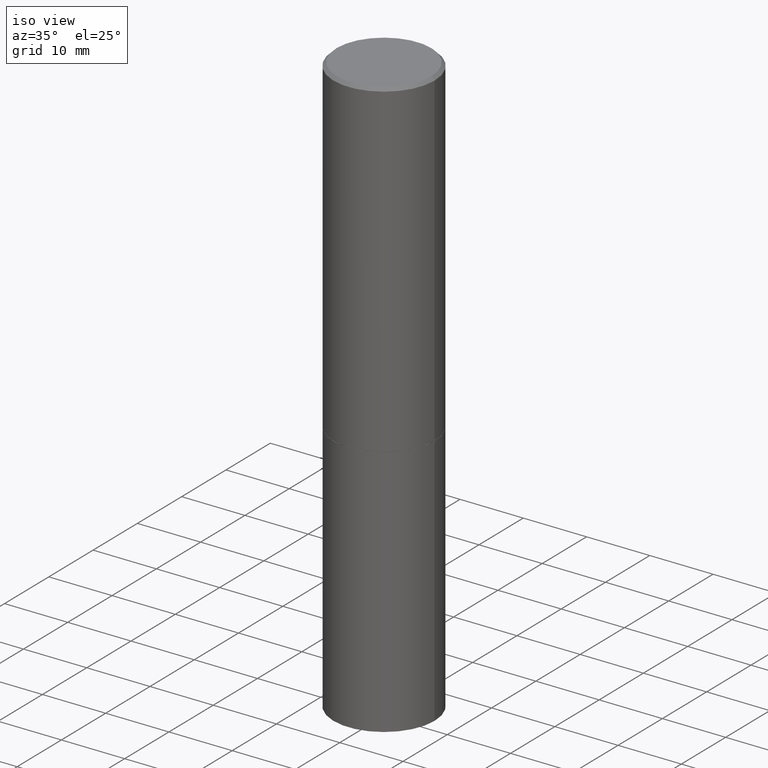
[diagram: clean part render]
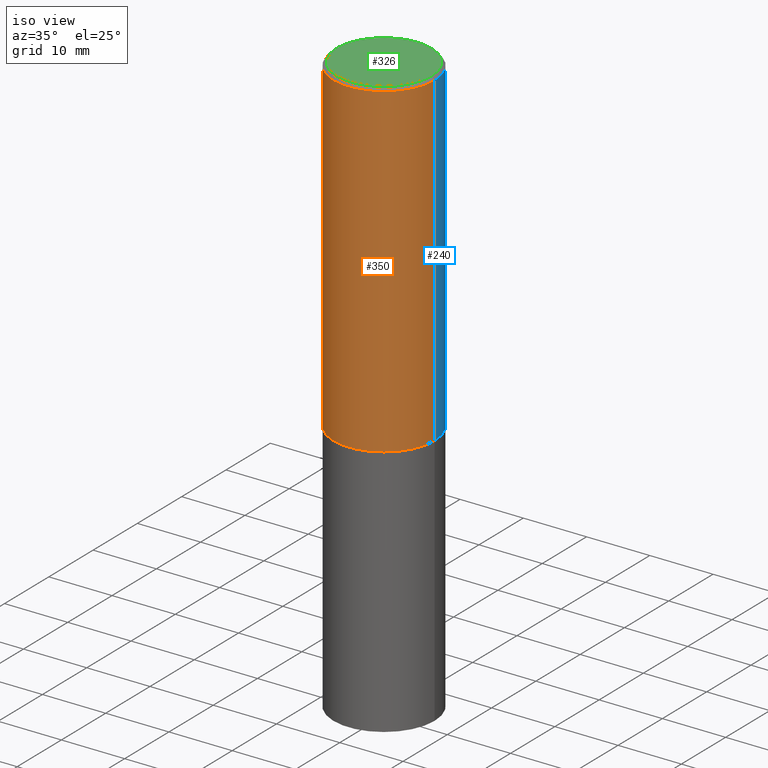
[diagram: same view with three faces highlighted in distinct colors, each labeled with its STEP entity id]
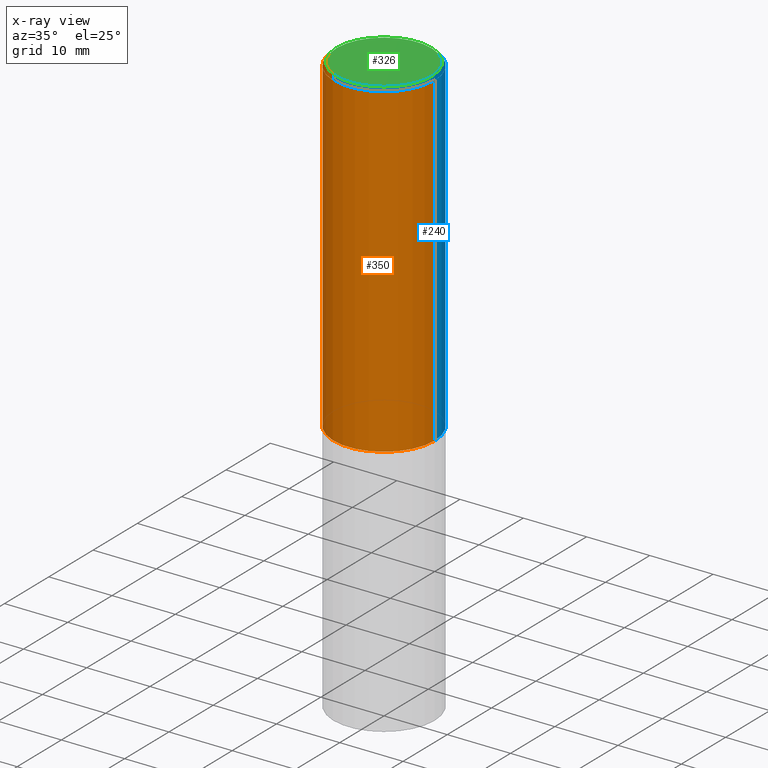
[diagram: x-ray of the same camera — body ghosted, the three highlighted faces saturated]
A machine part, iso view with three faces highlighted in distinct colors.
The next image is the same camera in x-ray (body ghosted, the three faces saturated) — at least one of them is partly hidden behind the body in this view.
Their STEP definitions:

[orange] entity #350 — the highlighted cylindrical surface (partial cylindrical patch) has radius 7.9997 mm, axis along (-0, 0, 1).
#12 = FACE_OUTER_BOUND ( 'NONE', #21, .T. ) ;
#20 = AXIS2_PLACEMENT_3D ( 'NONE', #298, #357, #277 ) ;
#21 = EDGE_LOOP ( 'NONE', ( #76, #185, #283, #135 ) ) ;
#22 = DIRECTION ( 'NONE',  ( -2.445468806185136597E-29, 3.491481338843145583E-15, 1.000000000000000000 ) ) ;
#24 = DIRECTION ( 'NONE',  ( 1.000000000000000000, -6.982962677686266711E-15, 0.000000000000000000 ) ) ;
#33 = EDGE_CURVE ( 'NONE', #198, #199, #300, .T. ) ;
#34 = AXIS2_PLACEMENT_3D ( 'NONE', #273, #22, #24 ) ;
#40 = CARTESIAN_POINT ( 'NONE',  ( -0.3149500000000000077, -1.369195024882416092E-15, -2.046199999999999797 ) ) ;
#42 = AXIS2_PLACEMENT_3D ( 'NONE', #155, #208, #153 ) ;
#63 = CIRCLE ( 'NONE', #20, 0.3149500000000000077 ) ;
#67 = CARTESIAN_POINT ( 'NONE',  ( 0.3149499999999997302, -2.230543471175005478E-15, -0.02000000000000006981 ) ) ;
#73 = EDGE_CURVE ( 'NONE', #339, #198, #63, .T. ) ;
#76 = ORIENTED_EDGE ( 'NONE', *, *, #96, .F. ) ;
#91 = CARTESIAN_POINT ( 'NONE',  ( 0.3149500000000000077, -9.343553210878133488E-15, -2.046199999999999797 ) ) ;
#96 = EDGE_CURVE ( 'NONE', #339, #172, #164, .T. ) ;
#102 = EDGE_CURVE ( 'NONE', #172, #199, #225, .T. ) ;
#135 = ORIENTED_EDGE ( 'NONE', *, *, #102, .F. ) ;
#153 = DIRECTION ( 'NONE',  ( 1.000000000000000000, -6.982962677686265922E-15, 4.876176775795935232E-29 ) ) ;
#155 = CARTESIAN_POINT ( 'NONE',  ( 0.000000000000000000, 0.000000000000000000, 0.000000000000000000 ) ) ;
#161 = DIRECTION ( 'NONE',  ( -2.445468806185136877E-29, 3.491481338843145188E-15, 1.000000000000000000 ) ) ;
#162 = CARTESIAN_POINT ( 'NONE',  ( 0.3149499999999998967, -2.199284095337288688E-15, 1.535751875536929289E-29 ) ) ;
#164 = LINE ( 'NONE', #248, #327 ) ;
#172 = VERTEX_POINT ( 'NONE', #173 ) ;
#173 = CARTESIAN_POINT ( 'NONE',  ( -0.3149499999999997302, 2.129454468560424601E-15, -0.02000000000000006981 ) ) ;
#185 = ORIENTED_EDGE ( 'NONE', *, *, #73, .T. ) ;
#188 = VECTOR ( 'NONE', #161, 39.37007874015748143 ) ;
#198 = VERTEX_POINT ( 'NONE', #91 ) ;
#199 = VERTEX_POINT ( 'NONE', #67 ) ;
#208 = DIRECTION ( 'NONE',  ( -2.445468806185136597E-29, 3.491481338843145583E-15, 1.000000000000000000 ) ) ;
#225 = CIRCLE ( 'NONE', #34, 0.3149499999999997302 ) ;
#238 = CYLINDRICAL_SURFACE ( 'NONE', #42, 0.3149499999999998967 ) ;
#248 = CARTESIAN_POINT ( 'NONE',  ( -0.3149499999999998967, 2.237854346276434801E-15, -1.549218606675782116E-29 ) ) ;
#272 = DIRECTION ( 'NONE',  ( -2.445468806185136877E-29, 3.491481338843145188E-15, 1.000000000000000000 ) ) ;
#273 = CARTESIAN_POINT ( 'NONE',  ( 4.890937612370289799E-31, -6.982962677686315028E-17, -0.02000000000000006981 ) ) ;
#277 = DIRECTION ( 'NONE',  ( 1.000000000000000000, -6.982962677686266711E-15, 0.000000000000000000 ) ) ;
#283 = ORIENTED_EDGE ( 'NONE', *, *, #33, .T. ) ;
#298 = CARTESIAN_POINT ( 'NONE',  ( 5.003918271216025517E-29, -7.144269115540843617E-15, -2.046199999999999797 ) ) ;
#300 = LINE ( 'NONE', #162, #188 ) ;
#327 = VECTOR ( 'NONE', #272, 39.37007874015748143 ) ;
#339 = VERTEX_POINT ( 'NONE', #40 ) ;
#350 = ADVANCED_FACE ( 'NONE', ( #12 ), #238, .T. ) ;
#357 = DIRECTION ( 'NONE',  ( -2.445468806185136597E-29, 3.491481338843145583E-15, 1.000000000000000000 ) ) ;

[blue] entity #240 — the highlighted cylindrical surface (partial cylindrical patch) has radius 7.9997 mm, axis along (-0, 0, 1).
#15 = FACE_OUTER_BOUND ( 'NONE', #45, .T. ) ;
#33 = EDGE_CURVE ( 'NONE', #198, #199, #300, .T. ) ;
#35 = CARTESIAN_POINT ( 'NONE',  ( 0.000000000000000000, 0.000000000000000000, 0.000000000000000000 ) ) ;
#40 = CARTESIAN_POINT ( 'NONE',  ( -0.3149500000000000077, -1.369195024882416092E-15, -2.046199999999999797 ) ) ;
#45 = EDGE_LOOP ( 'NONE', ( #84, #117, #255, #336 ) ) ;
#67 = CARTESIAN_POINT ( 'NONE',  ( 0.3149499999999997302, -2.230543471175005478E-15, -0.02000000000000006981 ) ) ;
#75 = DIRECTION ( 'NONE',  ( -2.445468806185136597E-29, 3.491481338843145583E-15, 1.000000000000000000 ) ) ;
#77 = AXIS2_PLACEMENT_3D ( 'NONE', #35, #125, #263 ) ;
#84 = ORIENTED_EDGE ( 'NONE', *, *, #92, .T. ) ;
#91 = CARTESIAN_POINT ( 'NONE',  ( 0.3149500000000000077, -9.343553210878133488E-15, -2.046199999999999797 ) ) ;
#92 = EDGE_CURVE ( 'NONE', #198, #339, #146, .T. ) ;
#96 = EDGE_CURVE ( 'NONE', #339, #172, #164, .T. ) ;
#101 = AXIS2_PLACEMENT_3D ( 'NONE', #157, #75, #219 ) ;
#117 = ORIENTED_EDGE ( 'NONE', *, *, #96, .T. ) ;
#125 = DIRECTION ( 'NONE',  ( -2.445468806185136597E-29, 3.491481338843145583E-15, 1.000000000000000000 ) ) ;
#137 = AXIS2_PLACEMENT_3D ( 'NONE', #267, #206, #265 ) ;
#146 = CIRCLE ( 'NONE', #101, 0.3149500000000000077 ) ;
#157 = CARTESIAN_POINT ( 'NONE',  ( 5.003918271216025517E-29, -7.144269115540843617E-15, -2.046199999999999797 ) ) ;
#161 = DIRECTION ( 'NONE',  ( -2.445468806185136877E-29, 3.491481338843145188E-15, 1.000000000000000000 ) ) ;
#162 = CARTESIAN_POINT ( 'NONE',  ( 0.3149499999999998967, -2.199284095337288688E-15, 1.535751875536929289E-29 ) ) ;
#164 = LINE ( 'NONE', #248, #327 ) ;
#172 = VERTEX_POINT ( 'NONE', #173 ) ;
#173 = CARTESIAN_POINT ( 'NONE',  ( -0.3149499999999997302, 2.129454468560424601E-15, -0.02000000000000006981 ) ) ;
#188 = VECTOR ( 'NONE', #161, 39.37007874015748143 ) ;
#198 = VERTEX_POINT ( 'NONE', #91 ) ;
#199 = VERTEX_POINT ( 'NONE', #67 ) ;
#206 = DIRECTION ( 'NONE',  ( -2.445468806185136597E-29, 3.491481338843145583E-15, 1.000000000000000000 ) ) ;
#219 = DIRECTION ( 'NONE',  ( 1.000000000000000000, -6.982962677686266711E-15, 0.000000000000000000 ) ) ;
#240 = ADVANCED_FACE ( 'NONE', ( #15 ), #292, .T. ) ;
#242 = EDGE_CURVE ( 'NONE', #199, #172, #285, .T. ) ;
#248 = CARTESIAN_POINT ( 'NONE',  ( -0.3149499999999998967, 2.237854346276434801E-15, -1.549218606675782116E-29 ) ) ;
#255 = ORIENTED_EDGE ( 'NONE', *, *, #242, .F. ) ;
#263 = DIRECTION ( 'NONE',  ( 1.000000000000000000, -6.982962677686265922E-15, 4.876176775795935232E-29 ) ) ;
#265 = DIRECTION ( 'NONE',  ( 1.000000000000000000, -6.982962677686266711E-15, 0.000000000000000000 ) ) ;
#267 = CARTESIAN_POINT ( 'NONE',  ( 4.890937612370289799E-31, -6.982962677686315028E-17, -0.02000000000000006981 ) ) ;
#272 = DIRECTION ( 'NONE',  ( -2.445468806185136877E-29, 3.491481338843145188E-15, 1.000000000000000000 ) ) ;
#285 = CIRCLE ( 'NONE', #137, 0.3149499999999997302 ) ;
#292 = CYLINDRICAL_SURFACE ( 'NONE', #77, 0.3149499999999998967 ) ;
#300 = LINE ( 'NONE', #162, #188 ) ;
#327 = VECTOR ( 'NONE', #272, 39.37007874015748143 ) ;
#336 = ORIENTED_EDGE ( 'NONE', *, *, #33, .F. ) ;
#339 = VERTEX_POINT ( 'NONE', #40 ) ;

[green] entity #326 — the highlighted planar face has unit normal (0, -0, -1).
#28 = DIRECTION ( 'NONE',  ( 1.000000000000000000, -6.982962677686267499E-15, 4.876053491004739391E-29 ) ) ;
#29 = ORIENTED_EDGE ( 'NONE', *, *, #299, .T. ) ;
#38 = DIRECTION ( 'NONE',  ( -2.445468806185136597E-29, 3.491481338843145583E-15, 1.000000000000000000 ) ) ;
#41 = AXIS2_PLACEMENT_3D ( 'NONE', #136, #252, #28 ) ;
#49 = VERTEX_POINT ( 'NONE', #330 ) ;
#61 = ORIENTED_EDGE ( 'NONE', *, *, #88, .T. ) ;
#88 = EDGE_CURVE ( 'NONE', #244, #49, #264, .T. ) ;
#126 = DIRECTION ( 'NONE',  ( -1.000000000000000000, 6.982962677686265922E-15, -4.876176775795935793E-29 ) ) ;
#128 = PLANE ( 'NONE',  #131 ) ;
#131 = AXIS2_PLACEMENT_3D ( 'NONE', #319, #349, #126 ) ;
#136 = CARTESIAN_POINT ( 'NONE',  ( -2.087702828670439639E-46, 2.980686340760894400E-32, 8.537024980200822558E-18 ) ) ;
#144 = EDGE_LOOP ( 'NONE', ( #61, #29 ) ) ;
#152 = CARTESIAN_POINT ( 'NONE',  ( -2.087702828670439639E-46, 2.980686340760894400E-32, 8.537024980200822558E-18 ) ) ;
#154 = CIRCLE ( 'NONE', #306, 0.2949499999999997124 ) ;
#234 = FACE_OUTER_BOUND ( 'NONE', #144, .T. ) ;
#236 = CARTESIAN_POINT ( 'NONE',  ( -0.2949499999999997124, 2.094539655171993740E-15, 8.537024980186296424E-18 ) ) ;
#244 = VERTEX_POINT ( 'NONE', #236 ) ;
#252 = DIRECTION ( 'NONE',  ( -2.445468806185136597E-29, 3.491481338843145583E-15, 1.000000000000000000 ) ) ;
#264 = CIRCLE ( 'NONE', #41, 0.2949499999999997124 ) ;
#291 = DIRECTION ( 'NONE',  ( 1.000000000000000000, -6.982962677686267499E-15, 4.876053491004739391E-29 ) ) ;
#299 = EDGE_CURVE ( 'NONE', #49, #244, #154, .T. ) ;
#306 = AXIS2_PLACEMENT_3D ( 'NONE', #152, #38, #291 ) ;
#319 = CARTESIAN_POINT ( 'NONE',  ( 2.059624841783562091E-15, 0.2949499999999997124, -1.025543908401684366E-15 ) ) ;
#326 = ADVANCED_FACE ( 'NONE', ( #234 ), #128, .F. ) ;
#330 = CARTESIAN_POINT ( 'NONE',  ( 0.2949499999999997124, -2.127023677808858103E-15, 8.537024980215462707E-18 ) ) ;
#349 = DIRECTION ( 'NONE',  ( 2.438088387897960049E-29, -3.491481338843145188E-15, -1.000000000000000000 ) ) ;